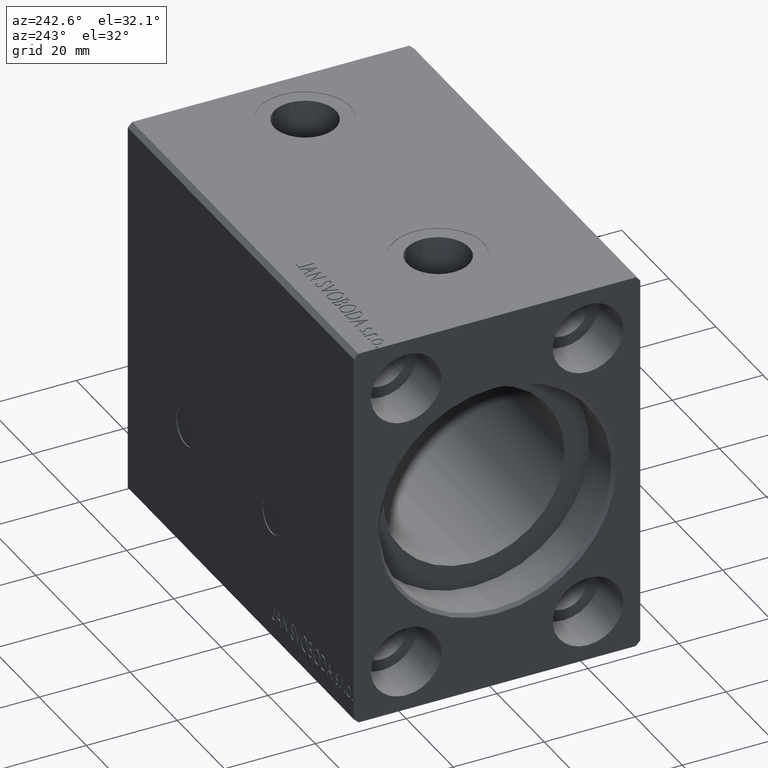
[diagram: clean part render]
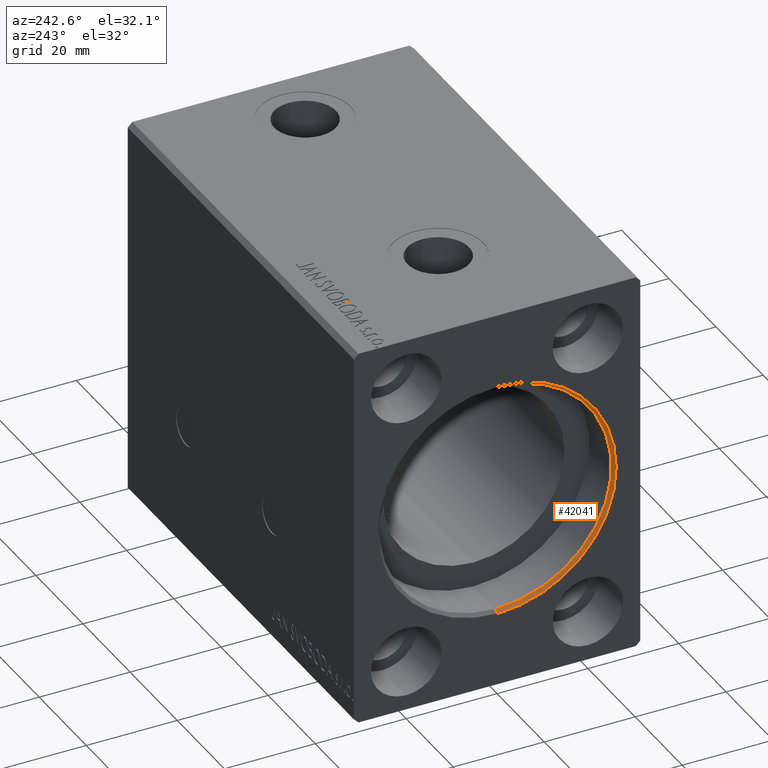
[diagram: same view with one face highlighted and labeled with its STEP entity id]
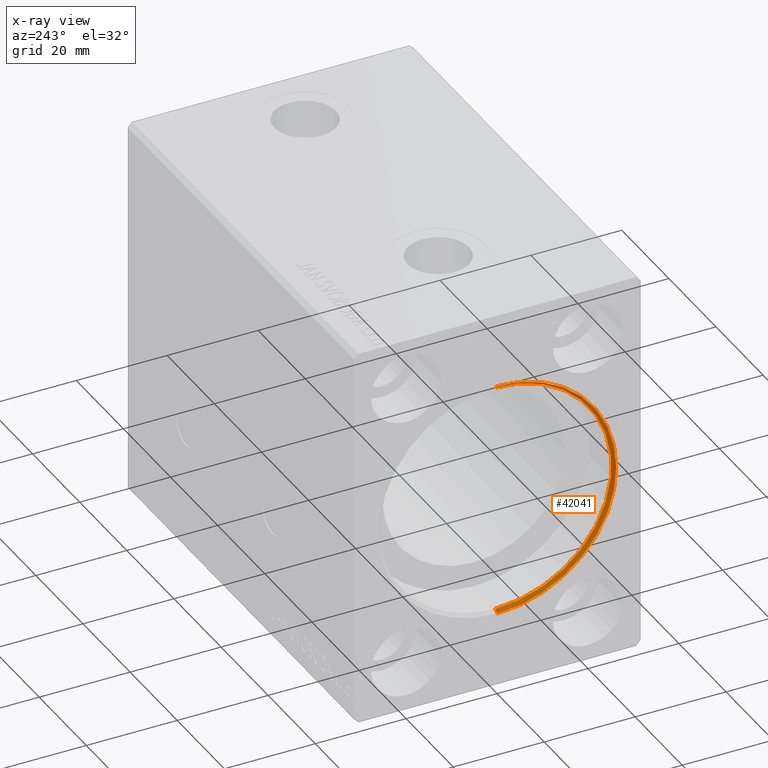
[diagram: x-ray of the same camera — body ghosted, the highlighted face saturated]
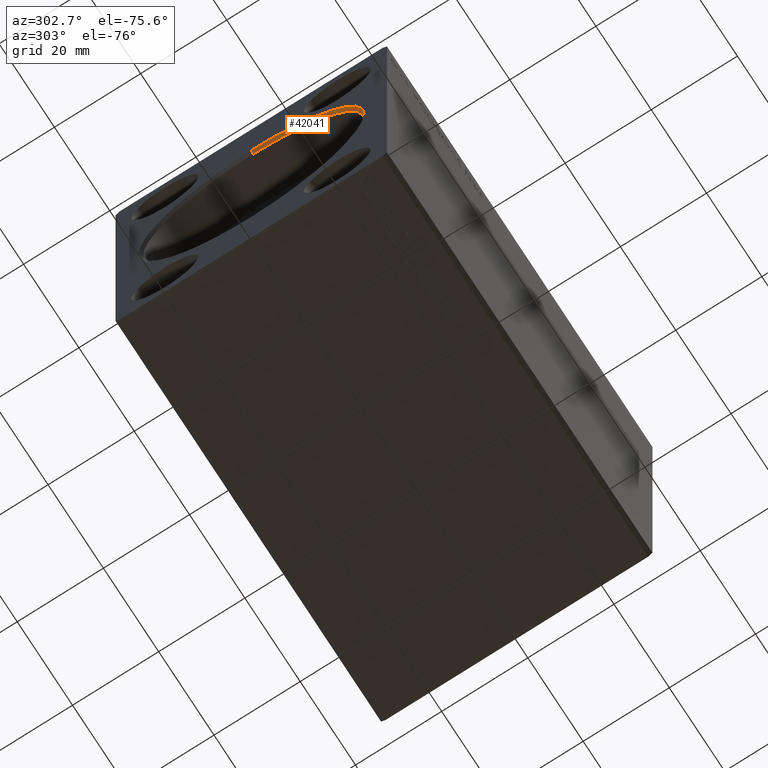
[diagram: same view with one face highlighted and labeled with its STEP entity id]
A machine part, auxiliary view. The second image highlights one B-rep face of the part: STEP entity #42041.
The next image is the same camera in x-ray: the body ghosted, the highlighted face saturated — about 0% of this face is hidden behind the body in this view.
A second angle (auxiliary view) of the same face is appended — the face is thin or edge-on in the first view.
In plain terms, the highlighted conical surface has half-angle 45 deg.
Its self-contained STEP definition (entity closure, byte-faithful):
#1443 = CARTESIAN_POINT ( 'NONE',  ( 0.000000000000000000, 0.000000000000000000, 26.19999999999998863 ) ) ;
#2936 = DIRECTION ( 'NONE',  ( -1.000000000000000000, 0.000000000000000000, 0.000000000000000000 ) ) ;
#3563 = CARTESIAN_POINT ( 'NONE',  ( 0.000000000000000000, 0.000000000000000000, 0.000000000000000000 ) ) ;
#5150 = DIRECTION ( 'NONE',  ( 0.000000000000000000, 0.000000000000000000, 1.000000000000000000 ) ) ;
#5565 = DIRECTION ( 'NONE',  ( -1.000000000000000000, 0.000000000000000000, 0.000000000000000000 ) ) ;
#6004 = DIRECTION ( 'NONE',  ( -0.7071067811865422437, 8.659560562354996953E-17, -0.7071067811865527908 ) ) ;
#6794 = DIRECTION ( 'NONE',  ( -0.7071067811865422437, 0.000000000000000000, 0.7071067811865527908 ) ) ;
#7941 = ORIENTED_EDGE ( 'NONE', *, *, #35365, .F. ) ;
#9455 = VECTOR ( 'NONE', #6794, 1000.000000000000000 ) ;
#10020 = CARTESIAN_POINT ( 'NONE',  ( 0.6999999999999784173, 0.000000000000000000, 25.50000000000000000 ) ) ;
#11014 = CIRCLE ( 'NONE', #34329, 25.50000000000000000 ) ;
#11524 = VECTOR ( 'NONE', #6004, 1000.000000000000000 ) ;
#15368 = CARTESIAN_POINT ( 'NONE',  ( 0.6999999999999784173, 0.000000000000000000, 25.50000000000000000 ) ) ;
#15677 = CIRCLE ( 'NONE', #24612, 26.19999999999998863 ) ;
#15878 = VERTEX_POINT ( 'NONE', #41296 ) ;
#16472 = DIRECTION ( 'NONE',  ( 0.000000000000000000, 0.000000000000000000, -1.000000000000000000 ) ) ;
#17469 = ORIENTED_EDGE ( 'NONE', *, *, #36878, .F. ) ;
#22344 = LINE ( 'NONE', #25769, #11524 ) ;
#22839 = ORIENTED_EDGE ( 'NONE', *, *, #28673, .F. ) ;
#24135 = VERTEX_POINT ( 'NONE', #1443 ) ;
#24612 = AXIS2_PLACEMENT_3D ( 'NONE', #3563, #32364, #16472 ) ;
#25622 = CONICAL_SURFACE ( 'NONE', #36589, 25.50000000000000000, 0.7853981633974557175 ) ;
#25769 = CARTESIAN_POINT ( 'NONE',  ( 0.6999999999999784173, 3.122849337825750222E-15, -25.50000000000000000 ) ) ;
#26379 = VERTEX_POINT ( 'NONE', #35215 ) ;
#28099 = EDGE_CURVE ( 'NONE', #15878, #26379, #22344, .T. ) ;
#28673 = EDGE_CURVE ( 'NONE', #29494, #24135, #30633, .T. ) ;
#28948 = DIRECTION ( 'NONE',  ( 0.000000000000000000, 0.000000000000000000, -1.000000000000000000 ) ) ;
#29494 = VERTEX_POINT ( 'NONE', #15368 ) ;
#30633 = LINE ( 'NONE', #10020, #9455 ) ;
#32164 = CARTESIAN_POINT ( 'NONE',  ( 0.6999999999999784173, 0.000000000000000000, 0.000000000000000000 ) ) ;
#32364 = DIRECTION ( 'NONE',  ( 1.000000000000000000, 0.000000000000000000, 0.000000000000000000 ) ) ;
#33091 = EDGE_LOOP ( 'NONE', ( #17469, #38217, #7941, #22839 ) ) ;
#34329 = AXIS2_PLACEMENT_3D ( 'NONE', #32164, #2936, #28948 ) ;
#35000 = FACE_OUTER_BOUND ( 'NONE', #33091, .T. ) ;
#35215 = CARTESIAN_POINT ( 'NONE',  ( 0.000000000000000000, 3.208574613766063722E-15, -26.19999999999998863 ) ) ;
#35365 = EDGE_CURVE ( 'NONE', #24135, #26379, #15677, .T. ) ;
#36589 = AXIS2_PLACEMENT_3D ( 'NONE', #41018, #5565, #5150 ) ;
#36878 = EDGE_CURVE ( 'NONE', #15878, #29494, #11014, .T. ) ;
#38217 = ORIENTED_EDGE ( 'NONE', *, *, #28099, .T. ) ;
#41018 = CARTESIAN_POINT ( 'NONE',  ( 0.6999999999999784173, 0.000000000000000000, 0.000000000000000000 ) ) ;
#41296 = CARTESIAN_POINT ( 'NONE',  ( 0.6999999999999784173, 3.122849337825750222E-15, -25.50000000000000000 ) ) ;
#42041 = ADVANCED_FACE ( 'NONE', ( #35000 ), #25622, .F. ) ;